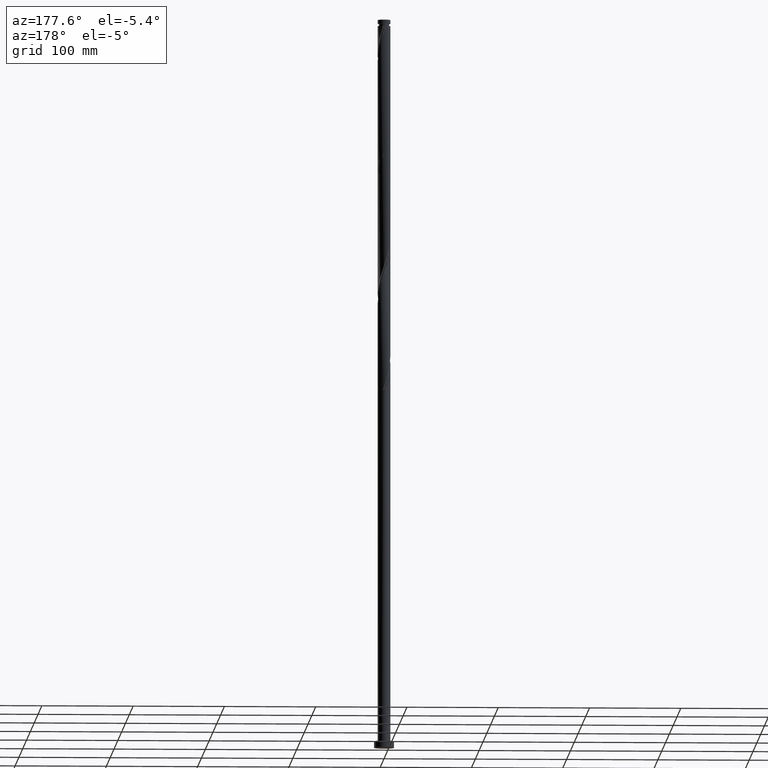
[diagram: clean part render]
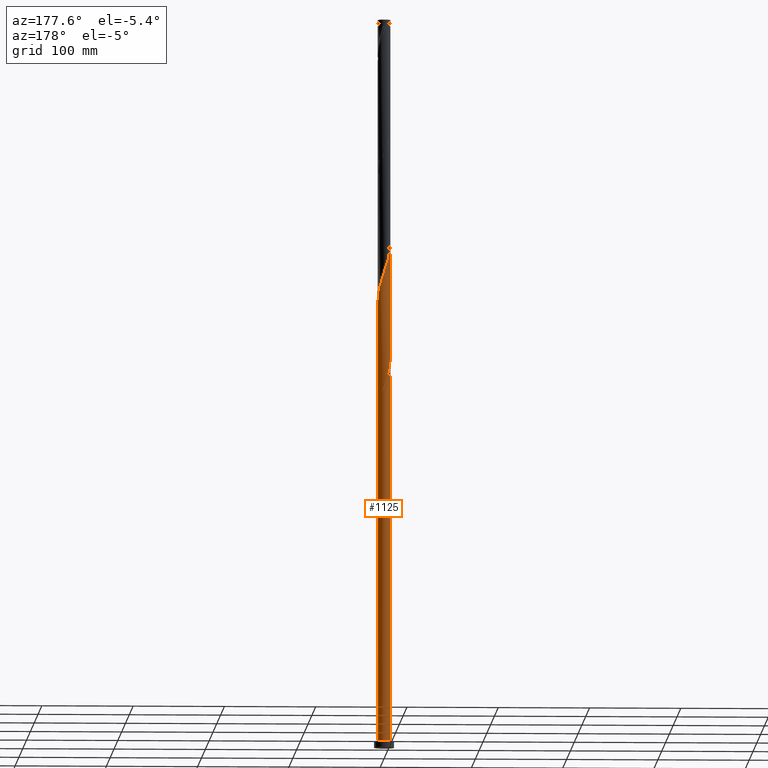
[diagram: same view with one face highlighted and labeled with its STEP entity id]
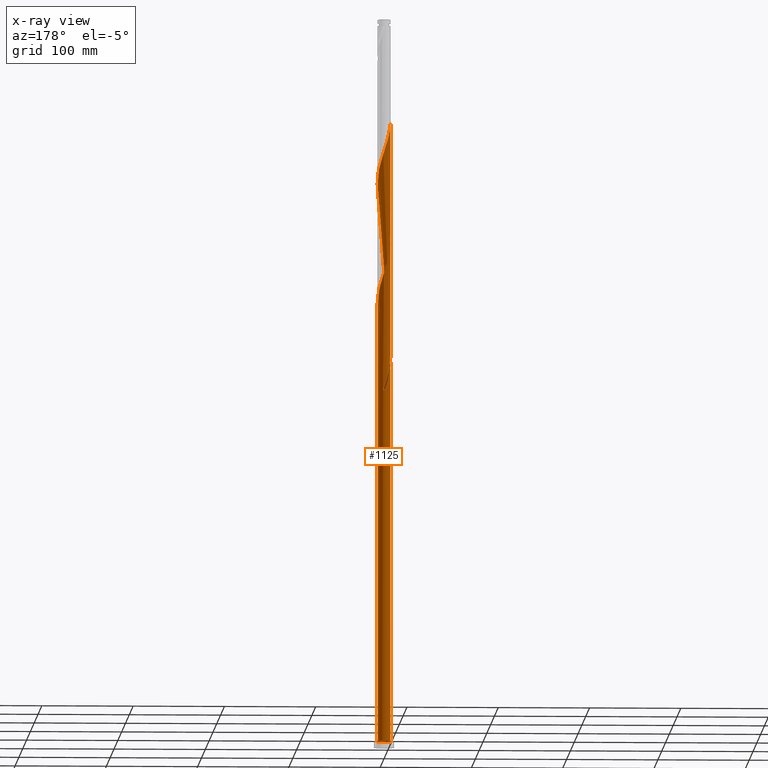
[diagram: x-ray of the same camera — body ghosted, the highlighted face saturated]
A machine part, auxiliary view. The second image highlights one B-rep face of the part: STEP entity #1125.
The next image is the same camera in x-ray: the body ghosted, the highlighted face saturated — about 0% of this face is hidden behind the body in this view.
In plain terms, the highlighted cylindrical surface (bore or boss wall) has radius 7 mm, axis along (-0, -0, -1).
Its self-contained STEP definition (entity closure, byte-faithful):
#10 = ORIENTED_EDGE ( 'NONE', *, *, #1901, .F. ) ;
#19 = CARTESIAN_POINT ( 'NONE',  ( -7.019691716855685826, -0.2457042627693018233, 556.3437618473819839 ) ) ;
#25 = CARTESIAN_POINT ( 'NONE',  ( -6.964393863783810978, 0.9130501051561894510, 552.8349899175576638 ) ) ;
#29 = CARTESIAN_POINT ( 'NONE',  ( 0.2448650581415234284, 6.995715910705735396, 396.6946390403646205 ) ) ;
#47 = CARTESIAN_POINT ( 'NONE',  ( -4.981072876368360269, -4.918222544813072084, 438.7999021982594172 ) ) ;
#49 = CARTESIAN_POINT ( 'NONE',  ( -3.114240358905256745, -6.269091400431627825, 579.1507793912418265 ) ) ;
#53 = CARTESIAN_POINT ( 'NONE',  ( -5.990507344429710557, 3.621301113734375132, 544.0630600929961247 ) ) ;
#68 = ORIENTED_EDGE ( 'NONE', *, *, #2090, .T. ) ;
#71 = CARTESIAN_POINT ( 'NONE',  ( 5.690437779000087737, -4.117688704572491254, 475.6420074614172222 ) ) ;
#73 = CARTESIAN_POINT ( 'NONE',  ( 6.883510678862323928, 1.397756458909656052, 626.5192004438733875 ) ) ;
#78 = CARTESIAN_POINT ( 'NONE',  ( -5.388608415490193870, -4.505479078737756105, 570.3788495666802874 ) ) ;
#82 = CARTESIAN_POINT ( 'NONE',  ( 6.964393863783810978, -0.9130501051561902282, 486.1683232508908645 ) ) ;
#87 = CARTESIAN_POINT ( 'NONE',  ( -5.722650359351619365, -4.031286750482149017, 435.2911302684348129 ) ) ;
#96 = CARTESIAN_POINT ( 'NONE',  ( 6.883510678862323928, 1.397756458909656052, 493.1858671105399594 ) ) ;
#98 = DIRECTION ( 'NONE',  ( 1.000000000000000000, 0.000000000000000000, 0.000000000000000000 ) ) ;
#104 = CARTESIAN_POINT ( 'NONE',  ( -6.721538046192512716, 1.954718980719879262, 424.7648144789611138 ) ) ;
#110 = EDGE_CURVE ( 'NONE', #1826, #957, #1983, .T. ) ;
#115 = CARTESIAN_POINT ( 'NONE',  ( -6.719125500927757955, 2.046898846357005031, 415.9928846543995746 ) ) ;
#141 = CARTESIAN_POINT ( 'NONE',  ( -3.633712082764799955, 6.011038087053209189, 408.9753407947505366 ) ) ;
#154 = CARTESIAN_POINT ( 'NONE',  ( -6.883510678862323928, -1.397756458909656718, 559.8525337772065313 ) ) ;
#193 = CARTESIAN_POINT ( 'NONE',  ( 5.722650359351619365, 4.031286750482150794, 501.9577969351015554 ) ) ;
#217 = CARTESIAN_POINT ( 'NONE',  ( 2.594768635045704652, 6.527144713810042020, 647.5718320228207858 ) ) ;
#226 = CARTESIAN_POINT ( 'NONE',  ( -0.3348164892539748361, -7.016006007904994846, 454.5893758824697670 ) ) ;
#246 = CARTESIAN_POINT ( 'NONE',  ( -0.2448650581415179883, 6.995715910705744278, 523.0104285140488400 ) ) ;
#252 = CARTESIAN_POINT ( 'NONE',  ( -6.308128858367879843, -3.034387962378324755, 565.1156916719434093 ) ) ;
#257 = CARTESIAN_POINT ( 'NONE',  ( -6.841759682355785799, 1.479974475756597574, 684.4139372859787045 ) ) ;
#262 = CARTESIAN_POINT ( 'NONE',  ( 6.992042790319748846, -0.3336729211934429951, 621.2560425491367369 ) ) ;
#269 = CARTESIAN_POINT ( 'NONE',  ( 0.9099315761367687827, 6.940606927837753126, 652.8349899175576638 ) ) ;
#274 = CARTESIAN_POINT ( 'NONE',  ( -6.951601197859004877, -0.8217303608394794789, 424.7648144789611706 ) ) ;
#276 = CIRCLE ( 'NONE', #1416, 7.000000000000000888 ) ;
#277 = CARTESIAN_POINT ( 'NONE',  ( -7.000000000000009770, -2.119877183096811692E-15, 422.2672682430844020 ) ) ;
#279 = CARTESIAN_POINT ( 'NONE',  ( -6.992042790319748846, 0.3336729211934438832, 421.2560425491365663 ) ) ;
#283 =( BOUNDED_CURVE ( )  B_SPLINE_CURVE ( 2, ( #1963, #435, #274, #592, #2137, #1616, #760, #583, #87, #1467, #47, #1446, #954, #2128, #1297, #1276, #2166, #403, #1788, #226, #2155, #1799, #1111, #1811, #940, #605, #1910, #1323, #296, #1081, #1131, #71, #767, #599, #1119, #1334, #1817, #82, #1829, #2161, #960, #96, #1067, #896, #548, #1421, #193, #1430, #1747, #1927, #1240, #709, #369, #538, #1055, #1147, #1336, #1121, #246, #1160, #444, #1819, #2172, #950, #623, #1651, #1841, #284, #1674, #1598, #53, #375, #1455, #571, #1060, #25, #2108, #19, #1939, #154, #1396, #874, #252, #923, #1271, #78, #1977, #774, #1619, #558, #49, #1262, #1949, #388, #823, #1320, #1140, #1863, #2196, #1186, #1697, #646, #320, #685, #1279, #1101, #1092, #1165, #1859, #1353, #483, #1873, #313, #1492, #262, #672, #1215, #73, #1475, #985, #613, #790, #1685, #2199, #1133, #973, #791, #2135, #1174, #217, #1313, #401, #269, #1535, #493, #1191, #507, #1205, #365, #1956, #913, #554, #902, #1580, #1554, #804, #1143, #1692, #2038, #298, #257, #2200, #1842, #1869, #1325 ),
 .UNSPECIFIED., .F., .T. ) 
 B_SPLINE_CURVE_WITH_KNOTS ( ( 3, 2, 2, 2, 2, 2, 2, 2, 2, 2, 2, 2, 2, 2, 2, 2, 2, 2, 2, 2, 2, 2, 2, 2, 2, 2, 2, 2, 2, 2, 2, 2, 2, 2, 2, 2, 2, 2, 2, 2, 2, 2, 2, 2, 2, 2, 2, 2, 2, 2, 2, 2, 2, 2, 2, 2, 2, 2, 2, 2, 2, 2, 2, 2, 2, 2, 2, 2, 2, 2, 2, 2, 2, 2, 2, 2, 2, 3 ),
 ( 0.05452958095159547020, 0.05921052631578949121, 0.06578947368421050879, 0.07236842105263152636, 0.07894736842105265495, 0.08552631578947367252, 0.09210526315789469010, 0.09868421052631581869, 0.1052631578947368363, 0.1118421052631578538, 0.1184210526315789824, 0.1250000000000000000, 0.1315789473684210176, 0.1381578947368421462, 0.1447368421052631637, 0.1513157894736841813, 0.1578947368421053099, 0.1644736842105263275, 0.1710526315789473450, 0.1776315789473684736, 0.1842105263157894912, 0.1907894736842105088, 0.1973684210526315264, 0.2039473684210526550, 0.2105263157894736725, 0.2171052631578946901, 0.2236842105263158187, 0.2302631578947368363, 0.2368421052631578538, 0.2434210526315789824, 0.2500000000000000000, 0.2565789473684210176, 0.2631578947368421462, 0.2697368421052631637, 0.2763157894736841813, 0.2828947368421053099, 0.2894736842105263275, 0.2960526315789473450, 0.3026315789473684736, 0.3092105263157894912, 0.3157894736842105088, 0.3223684210526315264, 0.3289473684210526550, 0.3355263157894736725, 0.3421052631578946901, 0.3486842105263158187, 0.3552631578947368363, 0.3618421052631578538, 0.3684210526315789824, 0.3750000000000000000, 0.3815789473684210176, 0.3881578947368421462, 0.3947368421052631637, 0.4013157894736841813, 0.4078947368421053099, 0.4144736842105263275, 0.4210526315789473450, 0.4276315789473684736, 0.4342105263157894912, 0.4407894736842105088, 0.4473684210526315264, 0.4539473684210526550, 0.4605263157894736725, 0.4671052631578946901, 0.4736842105263158187, 0.4802631578947368363, 0.4868421052631578538, 0.4934210526315789824, 0.5000000000000000000, 0.5065789473684210176, 0.5131578947368420351, 0.5197368421052631637, 0.5263157894736842923, 0.5328947368421053099, 0.5394736842105263275, 0.5460526315789473450, 0.5526315789473683626, 0.5545295809515958796 ),
 .UNSPECIFIED. ) 
 CURVE ( )  GEOMETRIC_REPRESENTATION_ITEM ( )  RATIONAL_B_SPLINE_CURVE ( ( 0.9078162034606338526, 0.9068816855934409560, 0.9090909090909626844, 0.9059859027333896364, 0.9090909090909626844, 0.9059859027333896364, 0.9090909090909626844, 0.9059859027333896364, 0.9090909090909626844, 0.9059859027333896364, 0.9090909090909626844, 0.9059859027333896364, 0.9090909090909626844, 0.9059859027333896364, 0.9090909090909626844, 0.9059859027333896364, 0.9090909090909626844, 0.9059859027333896364, 0.9090909090909626844, 0.9059859027333896364, 0.9090909090909626844, 0.9059859027333896364, 0.9090909090909626844, 0.9059859027333896364, 0.9090909090909626844, 0.9059859027333896364, 0.9090909090909626844, 0.9059859027333896364, 0.9090909090909626844, 0.9059859027333896364, 0.9090909090909626844, 0.9059859027333896364, 0.9090909090909626844, 0.9059859027333896364, 0.9090909090909626844, 0.9059859027333896364, 0.9090909090909626844, 0.9059859027333896364, 0.9090909090909626844, 0.9059859027333896364, 0.9090909090909626844, 0.9059859027333896364, 0.9090909090909626844, 0.9059859027333896364, 0.9090909090909626844, 0.9059859027333896364, 0.9090909090909626844, 0.9059859027333896364, 0.9090909090909626844, 0.9059859027333896364, 0.9090909090909626844, 0.9059859027333896364, 0.9090909090909626844, 0.9059859027333896364, 0.9090909090909626844, 0.9059859027333896364, 0.9090909090909626844, 0.9059859027333896364, 0.9090909090909626844, 0.9059859027333896364, 0.9090909090909626844, 0.9059859027333896364, 0.9090909090909626844, 0.9059859027333896364, 0.9090909090909626844, 0.9059859027333896364, 0.9090909090909626844, 0.9059859027333896364, 0.9090909090909626844, 0.9059859027333896364, 0.9090909090909626844, 0.9059859027333896364, 0.9090909090909626844, 0.9059859027333896364, 0.9090909090909626844, 0.9059859027333896364, 0.9090909090909626844, 0.9059859027333896364, 0.9090909090909626844, 0.9059859027333896364, 0.9090909090909626844, 0.9059859027333896364, 0.9090909090909626844, 0.9059859027333896364, 0.9090909090909626844, 0.9059859027333896364, 0.9090909090909626844, 0.9059859027333896364, 0.9090909090909626844, 0.9059859027333896364, 0.9090909090909626844, 0.9059859027333896364, 0.9090909090909626844, 0.9059859027333896364, 0.9090909090909626844, 0.9059859027333896364, 0.9090909090909626844, 0.9059859027333896364, 0.9090909090909626844, 0.9059859027333896364, 0.9090909090909626844, 0.9059859027333896364, 0.9090909090909626844, 0.9059859027333896364, 0.9090909090909626844, 0.9059859027333896364, 0.9090909090909626844, 0.9059859027333896364, 0.9090909090909626844, 0.9059859027333896364, 0.9090909090909626844, 0.9059859027333896364, 0.9090909090909626844, 0.9059859027333896364, 0.9090909090909626844, 0.9059859027333896364, 0.9090909090909626844, 0.9059859027333896364, 0.9090909090909626844, 0.9059859027333896364, 0.9090909090909626844, 0.9059859027333896364, 0.9090909090909626844, 0.9059859027333896364, 0.9090909090909626844, 0.9059859027333896364, 0.9090909090909626844, 0.9059859027333896364, 0.9090909090909626844, 0.9059859027333896364, 0.9090909090909626844, 0.9059859027333896364, 0.9090909090909626844, 0.9059859027333896364, 0.9090909090909626844, 0.9059859027333896364, 0.9090909090909626844, 0.9059859027333896364, 0.9090909090909626844, 0.9059859027333896364, 0.9090909090909626844, 0.9059859027333896364, 0.9090909090909626844, 0.9059859027333896364, 0.9090909090909626844, 0.9059859027333896364, 0.9090909090909626844, 0.9059859027333896364, 0.9090909090909626844, 0.9059859027333896364, 0.9090909090909626844, 0.9059859027333896364, 0.9090909090909626844, 0.9081951262309111428, 0.9078162034606336306 ) ) 
 REPRESENTATION_ITEM ( '' )  );
#284 = CARTESIAN_POINT ( 'NONE',  ( -4.935078339393903946, 4.998144072401317750, 538.7999021982591330 ) ) ;
#292 = CARTESIAN_POINT ( 'NONE',  ( -7.000000000000010658, 0.1669313397161795720, 421.7609452246443311 ) ) ;
#296 = CARTESIAN_POINT ( 'NONE',  ( 4.490090583436023408, -5.370203585762769016, 470.3788495666805147 ) ) ;
#298 = CARTESIAN_POINT ( 'NONE',  ( -6.719125500927757955, 2.046898846357005031, 682.6595513210663739 ) ) ;
#306 = ORIENTED_EDGE ( 'NONE', *, *, #1062, .F. ) ;
#313 = CARTESIAN_POINT ( 'NONE',  ( 6.841759682355785799, -1.479974475756600460, 617.7472706193118483 ) ) ;
#317 = CARTESIAN_POINT ( 'NONE',  ( -1.485046663019558455, 6.865207847770501637, 401.9577969351014985 ) ) ;
#320 = CARTESIAN_POINT ( 'NONE',  ( 3.544945141351496076, -6.036005628294971004, 600.2034109701892248 ) ) ;
#328 = DIRECTION ( 'NONE',  ( -1.000000000000000000, 0.000000000000000000, 0.000000000000000000 ) ) ;
#329 = CARTESIAN_POINT ( 'NONE',  ( -5.990507344429710557, 3.621301113734375132, 410.7297267596628103 ) ) ;
#343 = ORIENTED_EDGE ( 'NONE', *, *, #1316, .F. ) ;
#365 = CARTESIAN_POINT ( 'NONE',  ( -2.503102836793194896, 6.537161171979624541, 663.3613057070315335 ) ) ;
#369 = CARTESIAN_POINT ( 'NONE',  ( 3.114240358905257189, 6.269091400431627825, 512.4841127245753114 ) ) ;
#373 = EDGE_CURVE ( 'NONE', #439, #515, #1117, .T. ) ;
#375 = CARTESIAN_POINT ( 'NONE',  ( -6.290576909859333377, 3.124913522896259011, 545.8174460579083416 ) ) ;
#388 = CARTESIAN_POINT ( 'NONE',  ( -1.485046663019564450, -6.865207847770506966, 584.4139372859787045 ) ) ;
#401 = CARTESIAN_POINT ( 'NONE',  ( 1.485046663019565116, 6.865207847770508742, 651.0806039526453333 ) ) ;
#403 = CARTESIAN_POINT ( 'NONE',  ( -1.485046663019564450, -6.865207847770506966, 451.0806039526452196 ) ) ;
#411 = FACE_OUTER_BOUND ( 'NONE', #609, .T. ) ;
#435 = CARTESIAN_POINT ( 'NONE',  ( -7.000000000000010658, -0.4122904922740331379, 423.5177953572697334 ) ) ;
#439 = VERTEX_POINT ( 'NONE', #1730 ) ;
#444 = CARTESIAN_POINT ( 'NONE',  ( -1.392982411949277299, 6.860000000000007425, 526.5192004438736149 ) ) ;
#473 = CARTESIAN_POINT ( 'NONE',  ( -4.573537337246520451, 5.330966010888385398, 412.4841127245751409 ) ) ;
#483 = CARTESIAN_POINT ( 'NONE',  ( 6.504851205393546998, -2.585906184626632243, 614.2384986894876420 ) ) ;
#493 = CARTESIAN_POINT ( 'NONE',  ( -0.2448650581415179883, 6.995715910705744278, 656.3437618473823250 ) ) ;
#499 = CARTESIAN_POINT ( 'NONE',  ( -4.045102827478141094, 5.742263099124218506, 401.9577969351013849 ) ) ;
#500 = VECTOR ( 'NONE', #744, 1000.000000000000000 ) ;
#507 = CARTESIAN_POINT ( 'NONE',  ( -1.392982411949277299, 6.860000000000007425, 659.8525337772067587 ) ) ;
#512 = CARTESIAN_POINT ( 'NONE',  ( -6.308128858367871850, 3.034387962378322978, 421.2560425491365663 ) ) ;
#515 = VERTEX_POINT ( 'NONE', #1765 ) ;
#519 = CARTESIAN_POINT ( 'NONE',  ( -7.000000000000000888, 0.000000000000000000, 800.0000000000000000 ) ) ;
#524 = CARTESIAN_POINT ( 'NONE',  ( 0.8245466055370179737, 6.975425813506483941, 394.9402530754524037 ) ) ;
#538 = CARTESIAN_POINT ( 'NONE',  ( 2.594768635045704652, 6.527144713810042020, 514.2384986894874146 ) ) ;
#548 = CARTESIAN_POINT ( 'NONE',  ( 6.308128858367882508, 3.034387962378322534, 498.4490250052770079 ) ) ;
#554 = CARTESIAN_POINT ( 'NONE',  ( -4.045102827478141094, 5.742263099124218506, 668.6244636017682978 ) ) ;
#558 = CARTESIAN_POINT ( 'NONE',  ( -3.633712082764805285, -6.011038087053212742, 577.3963934263294959 ) ) ;
#571 = CARTESIAN_POINT ( 'NONE',  ( -6.719125500927757955, 2.046898846357005031, 549.3262179877328890 ) ) ;
#583 = CARTESIAN_POINT ( 'NONE',  ( -6.056692303213043083, -3.557094422226545039, 433.5367443035224255 ) ) ;
#592 = CARTESIAN_POINT ( 'NONE',  ( -6.883510678862323928, -1.397756458909656718, 426.5192004438732738 ) ) ;
#599 = CARTESIAN_POINT ( 'NONE',  ( 6.290576909859333377, -3.124913522896261231, 479.1507793912417128 ) ) ;
#605 = CARTESIAN_POINT ( 'NONE',  ( 3.044787455224846617, -6.329748157465723502, 465.1156916719436367 ) ) ;
#609 = EDGE_LOOP ( 'NONE', ( #10, #343, #1814, #1085, #1300, #306, #1333, #68, #1867 ) ) ;
#613 = CARTESIAN_POINT ( 'NONE',  ( 6.308128858367882508, 3.034387962378322534, 631.7823583386102655 ) ) ;
#623 = CARTESIAN_POINT ( 'NONE',  ( -3.544945141351496076, 6.036005628294971004, 533.5367443035225961 ) ) ;
#630 = CARTESIAN_POINT ( 'NONE',  ( -6.559565413522707722, 2.511681502530102250, 423.0104285140488400 ) ) ;
#646 = CARTESIAN_POINT ( 'NONE',  ( 3.044787455224846617, -6.329748157465723502, 598.4490250052770079 ) ) ;
#667 = CARTESIAN_POINT ( 'NONE',  ( -0.3348164892539708948, 7.016006007904984187, 398.4490250052768374 ) ) ;
#672 = CARTESIAN_POINT ( 'NONE',  ( 7.019691716855685826, 0.2457042627692980485, 623.0104285140488400 ) ) ;
#685 = CARTESIAN_POINT ( 'NONE',  ( 4.045102827478140206, -5.742263099124220282, 601.9577969351014417 ) ) ;
#709 = CARTESIAN_POINT ( 'NONE',  ( 3.633712082764808393, 6.011038087053211854, 510.7297267596628672 ) ) ;
#725 = CYLINDRICAL_SURFACE ( 'NONE', #1414, 7.000000000000000888 ) ;
#735 = CARTESIAN_POINT ( 'NONE',  ( 1.392982411949279964, 6.860000000000000320, 393.1858671105400163 ) ) ;
#744 = DIRECTION ( 'NONE',  ( -0.000000000000000000, -0.000000000000000000, -1.000000000000000000 ) ) ;
#760 = CARTESIAN_POINT ( 'NONE',  ( -6.308128858367879843, -3.034387962378324755, 431.7823583386102655 ) ) ;
#767 = CARTESIAN_POINT ( 'NONE',  ( 5.990507344429709669, -3.621301113734377797, 477.3963934263295528 ) ) ;
#774 = CARTESIAN_POINT ( 'NONE',  ( -4.573537337246526668, -5.330966010888391615, 573.8876214965049485 ) ) ;
#780 = CARTESIAN_POINT ( 'NONE',  ( 0.000000000000000000, 0.000000000000000000, 7.000000000000000000 ) ) ;
#790 = CARTESIAN_POINT ( 'NONE',  ( 6.056692303213043083, 3.557094422226544594, 633.5367443035222550 ) ) ;
#791 = CARTESIAN_POINT ( 'NONE',  ( 4.103624710005671083, 5.671002048970800402, 642.3086741280841352 ) ) ;
#797 = CARTESIAN_POINT ( 'NONE',  ( -6.056692303213035089, 3.557094422226542374, 419.5016565842242358 ) ) ;
#804 = CARTESIAN_POINT ( 'NONE',  ( -5.690437779000087737, 4.117688704572489478, 675.6420074614172790 ) ) ;
#809 = CARTESIAN_POINT ( 'NONE',  ( -3.544945141351496076, 6.036005628294971004, 400.2034109701891111 ) ) ;
#823 = CARTESIAN_POINT ( 'NONE',  ( -0.9099315761367683386, -6.940606927837753126, 586.1683232508910351 ) ) ;
#835 = CARTESIAN_POINT ( 'NONE',  ( -0.9099315761367652300, 6.940606927837743356, 400.2034109701891680 ) ) ;
#867 = LINE ( 'NONE', #519, #1376 ) ;
#874 = CARTESIAN_POINT ( 'NONE',  ( -6.559565413522717492, -2.511681502530103582, 563.3613057070310788 ) ) ;
#896 = CARTESIAN_POINT ( 'NONE',  ( 6.559565413522717492, 2.511681502530100030, 496.6946390403646774 ) ) ;
#902 = CARTESIAN_POINT ( 'NONE',  ( -4.490090583436024296, 5.370203585762769016, 670.3788495666806284 ) ) ;
#913 = CARTESIAN_POINT ( 'NONE',  ( -3.544945141351496076, 6.036005628294971004, 666.8700776368559673 ) ) ;
#923 = CARTESIAN_POINT ( 'NONE',  ( -6.056692303213043083, -3.557094422226545039, 566.8700776368556262 ) ) ;
#940 = CARTESIAN_POINT ( 'NONE',  ( 2.503102836793194452, -6.537161171979625429, 463.3613057070312493 ) ) ;
#950 = CARTESIAN_POINT ( 'NONE',  ( -3.044787455224847506, 6.329748157465721725, 531.7823583386101518 ) ) ;
#954 = CARTESIAN_POINT ( 'NONE',  ( -4.103624710005667531, -5.671002048970803067, 442.3086741280839078 ) ) ;
#957 = VERTEX_POINT ( 'NONE', #277 ) ;
#960 = CARTESIAN_POINT ( 'NONE',  ( 6.951601197859004877, 0.8217303608394771475, 491.4314811456277994 ) ) ;
#973 = CARTESIAN_POINT ( 'NONE',  ( 4.573537337246526668, 5.330966010888388951, 640.5542881631714636 ) ) ;
#985 = CARTESIAN_POINT ( 'NONE',  ( 6.559565413522717492, 2.511681502530100030, 630.0279723736979349 ) ) ;
#999 = CIRCLE ( 'NONE', #1987, 7.000000000000000888 ) ;
#1026 = DIRECTION ( 'NONE',  ( 0.000000000000000000, -0.000000000000000000, -1.000000000000000000 ) ) ;
#1034 = DIRECTION ( 'NONE',  ( -0.000000000000000000, -0.000000000000000000, -1.000000000000000000 ) ) ;
#1055 = CARTESIAN_POINT ( 'NONE',  ( 2.039907649032638659, 6.696176280790275825, 515.9928846543998588 ) ) ;
#1060 = CARTESIAN_POINT ( 'NONE',  ( -6.841759682355785799, 1.479974475756597574, 551.0806039526453333 ) ) ;
#1062 = EDGE_CURVE ( 'NONE', #957, #1066, #867, .T. ) ;
#1066 = VERTEX_POINT ( 'NONE', #1847 ) ;
#1067 = CARTESIAN_POINT ( 'NONE',  ( 6.721538046192520710, 1.954718980719881483, 494.9402530754523468 ) ) ;
#1081 = CARTESIAN_POINT ( 'NONE',  ( 4.935078339393903946, -4.998144072401318638, 472.1332355315926179 ) ) ;
#1085 = ORIENTED_EDGE ( 'NONE', *, *, #1783, .T. ) ;
#1092 = CARTESIAN_POINT ( 'NONE',  ( 5.312758059196996285, -4.557916388486905390, 607.2209548298384334 ) ) ;
#1101 = CARTESIAN_POINT ( 'NONE',  ( 4.935078339393903946, -4.998144072401318638, 605.4665688649261028 ) ) ;
#1106 = AXIS2_PLACEMENT_3D ( 'NONE', #1595, #1777, #1980 ) ;
#1111 = CARTESIAN_POINT ( 'NONE',  ( 1.392982411949278410, -6.860000000000007425, 459.8525337772068156 ) ) ;
#1117 =( BOUNDED_CURVE ( )  B_SPLINE_CURVE ( 2, ( #1889, #1670, #1513, #2066, #104, #630, #512, #797, #2192, #2206, #1344, #473, #2220, #141, #1356, #2041, #1183, #317, #835, #667, #29, #524, #735 ),
 .UNSPECIFIED., .F., .T. ) 
 B_SPLINE_CURVE_WITH_KNOTS ( ( 3, 2, 2, 2, 2, 2, 2, 2, 2, 2, 2, 3 ),
 ( 0.9295295809515955465, 0.9342105263157894912, 0.9407894736842105088, 0.9473684210526315264, 0.9539473684210526550, 0.9605263157894736725, 0.9671052631578946901, 0.9736842105263158187, 0.9802631578947368363, 0.9868421052631578538, 0.9934210526315789824, 1.000000000000000000 ),
 .UNSPECIFIED. ) 
 CURVE ( )  GEOMETRIC_REPRESENTATION_ITEM ( )  RATIONAL_B_SPLINE_CURVE ( ( 0.9078162034606287456, 0.9068816855934358490, 0.9090909090909575774, 0.9059859027333845294, 0.9090909090909575774, 0.9059859027333845294, 0.9090909090909575774, 0.9059859027333845294, 0.9090909090909575774, 0.9059859027333845294, 0.9090909090909575774, 0.9059859027333845294, 0.9090909090909575774, 0.9059859027333845294, 0.9090909090909575774, 0.9059859027333845294, 0.9090909090909575774, 0.9059859027333845294, 0.9090909090909575774, 0.9059859027333845294, 0.9090909090909575774, 0.9059859027333845294, 0.9090909090909575774 ) ) 
 REPRESENTATION_ITEM ( '' )  );
#1119 = CARTESIAN_POINT ( 'NONE',  ( 6.504851205393546998, -2.585906184626632243, 480.9051653561541571 ) ) ;
#1121 = CARTESIAN_POINT ( 'NONE',  ( 0.3348164892539727266, 7.016006007904994846, 521.2560425491366232 ) ) ;
#1125 = ADVANCED_FACE ( 'NONE', ( #411 ), #725, .T. ) ;
#1128 = VERTEX_POINT ( 'NONE', #1932 ) ;
#1131 = CARTESIAN_POINT ( 'NONE',  ( 5.312758059196996285, -4.557916388486905390, 473.8876214965051759 ) ) ;
#1133 = CARTESIAN_POINT ( 'NONE',  ( 4.981072876368362046, 4.918222544813072084, 638.7999021982595877 ) ) ;
#1140 = CARTESIAN_POINT ( 'NONE',  ( 0.2448650581415218463, -6.995715910705744278, 589.6770951807156962 ) ) ;
#1143 = CARTESIAN_POINT ( 'NONE',  ( -5.990507344429710557, 3.621301113734375132, 677.3963934263294959 ) ) ;
#1147 = CARTESIAN_POINT ( 'NONE',  ( 1.485046663019565116, 6.865207847770508742, 517.7472706193120757 ) ) ;
#1158 = VERTEX_POINT ( 'NONE', #1256 ) ;
#1160 = CARTESIAN_POINT ( 'NONE',  ( -0.8245466055370147540, 6.975425813506491046, 524.7648144789610569 ) ) ;
#1165 = CARTESIAN_POINT ( 'NONE',  ( 5.690437779000087737, -4.117688704572491254, 608.9753407947505366 ) ) ;
#1169 = CARTESIAN_POINT ( 'NONE',  ( -4.935078339393903946, 4.998144072401317750, 405.4665688649258186 ) ) ;
#1174 = CARTESIAN_POINT ( 'NONE',  ( 3.114240358905257189, 6.269091400431627825, 645.8174460579084553 ) ) ;
#1183 = CARTESIAN_POINT ( 'NONE',  ( -2.039907649032629333, 6.696176280790268720, 403.7121829000136586 ) ) ;
#1186 = CARTESIAN_POINT ( 'NONE',  ( 1.961418218361537402, -6.744574186493523804, 594.9402530754523468 ) ) ;
#1191 = CARTESIAN_POINT ( 'NONE',  ( -0.8245466055370147540, 6.975425813506491046, 658.0981478122943145 ) ) ;
#1205 = CARTESIAN_POINT ( 'NONE',  ( -1.961418218361539623, 6.744574186493522028, 661.6069197421190893 ) ) ;
#1210 = CARTESIAN_POINT ( 'NONE',  ( -6.290576909859333377, 3.124913522896259011, 412.4841127245750840 ) ) ;
#1215 = CARTESIAN_POINT ( 'NONE',  ( 6.951601197859004877, 0.8217303608394771475, 624.7648144789612843 ) ) ;
#1240 = CARTESIAN_POINT ( 'NONE',  ( 4.103624710005671083, 5.671002048970800402, 508.9753407947505934 ) ) ;
#1245 = DIRECTION ( 'NONE',  ( -1.000000000000000000, 0.000000000000000000, 0.000000000000000000 ) ) ;
#1256 = CARTESIAN_POINT ( 'NONE',  ( -7.000000000000009770, 6.867207776229107436E-16, 688.9339349097513150 ) ) ;
#1261 = CARTESIAN_POINT ( 'NONE',  ( -7.000000000000000888, 0.000000000000000000, 800.0000000000000000 ) ) ;
#1262 = CARTESIAN_POINT ( 'NONE',  ( -2.594768635045703764, -6.527144713810042020, 580.9051653561541571 ) ) ;
#1271 = CARTESIAN_POINT ( 'NONE',  ( -5.722650359351619365, -4.031286750482149017, 568.6244636017678431 ) ) ;
#1276 = CARTESIAN_POINT ( 'NONE',  ( -2.594768635045703764, -6.527144713810042020, 447.5718320228207290 ) ) ;
#1279 = CARTESIAN_POINT ( 'NONE',  ( 4.490090583436023408, -5.370203585762769016, 603.7121829000138860 ) ) ;
#1297 = CARTESIAN_POINT ( 'NONE',  ( -3.114240358905256745, -6.269091400431627825, 445.8174460579085689 ) ) ;
#1300 = ORIENTED_EDGE ( 'NONE', *, *, #1646, .T. ) ;
#1309 = CARTESIAN_POINT ( 'NONE',  ( -3.044787455224847506, 6.329748157465721725, 398.4490250052767237 ) ) ;
#1313 = CARTESIAN_POINT ( 'NONE',  ( 2.039907649032638659, 6.696176280790275825, 649.3262179877330027 ) ) ;
#1316 = EDGE_CURVE ( 'NONE', #957, #1158, #283, .T. ) ;
#1320 = CARTESIAN_POINT ( 'NONE',  ( -0.3348164892539748361, -7.016006007904994846, 587.9227092158033656 ) ) ;
#1323 = CARTESIAN_POINT ( 'NONE',  ( 4.045102827478140206, -5.742263099124220282, 468.6244636017681273 ) ) ;
#1325 = CARTESIAN_POINT ( 'NONE',  ( -7.000000000000009770, 6.867207776229107436E-16, 688.9339349097512013 ) ) ;
#1333 = ORIENTED_EDGE ( 'NONE', *, *, #110, .F. ) ;
#1334 = CARTESIAN_POINT ( 'NONE',  ( 6.719125500927756178, -2.046898846357009472, 482.6595513210663171 ) ) ;
#1336 = CARTESIAN_POINT ( 'NONE',  ( 0.9099315761367687827, 6.940606927837753126, 519.5016565842242926 ) ) ;
#1344 = CARTESIAN_POINT ( 'NONE',  ( -4.981072876368353164, 4.918222544813068531, 414.2384986894874146 ) ) ;
#1353 = CARTESIAN_POINT ( 'NONE',  ( 6.290576909859333377, -3.124913522896261231, 612.4841127245750840 ) ) ;
#1356 = CARTESIAN_POINT ( 'NONE',  ( -3.114240358905251416, 6.269091400431621608, 407.2209548298382060 ) ) ;
#1376 = VECTOR ( 'NONE', #1034, 1000.000000000000000 ) ;
#1396 = CARTESIAN_POINT ( 'NONE',  ( -6.721538046192520710, -1.954718980719880150, 561.6069197421189756 ) ) ;
#1414 = AXIS2_PLACEMENT_3D ( 'NONE', #2107, #2097, #1245 ) ;
#1416 = AXIS2_PLACEMENT_3D ( 'NONE', #1912, #1026, #328 ) ;
#1421 = CARTESIAN_POINT ( 'NONE',  ( 6.056692303213043083, 3.557094422226544594, 500.2034109701891680 ) ) ;
#1430 = CARTESIAN_POINT ( 'NONE',  ( 5.388608415490194758, 4.505479078737750775, 503.7121829000137154 ) ) ;
#1446 = CARTESIAN_POINT ( 'NONE',  ( -4.573537337246526668, -5.330966010888391615, 440.5542881631715204 ) ) ;
#1455 = CARTESIAN_POINT ( 'NONE',  ( -6.504851205393546998, 2.585906184626632243, 547.5718320228208995 ) ) ;
#1461 = CARTESIAN_POINT ( 'NONE',  ( -1.961418218361539623, 6.744574186493522028, 394.9402530754522900 ) ) ;
#1467 = CARTESIAN_POINT ( 'NONE',  ( -5.388608415490193870, -4.505479078737756105, 437.0455162333469161 ) ) ;
#1475 = CARTESIAN_POINT ( 'NONE',  ( 6.721538046192520710, 1.954718980719881483, 628.2735864087856044 ) ) ;
#1481 = CARTESIAN_POINT ( 'NONE',  ( -1.392982411949277077, 6.860000000000007425, 393.1858671105400163 ) ) ;
#1485 = CIRCLE ( 'NONE', #1106, 7.000000000000000888 ) ;
#1492 = CARTESIAN_POINT ( 'NONE',  ( 6.964393863783810978, -0.9130501051561902282, 619.5016565842241789 ) ) ;
#1513 = CARTESIAN_POINT ( 'NONE',  ( -6.951601197858996883, 0.8217303608394801451, 428.2735864087856612 ) ) ;
#1535 = CARTESIAN_POINT ( 'NONE',  ( 0.3348164892539727266, 7.016006007904994846, 654.5893758824699944 ) ) ;
#1554 = CARTESIAN_POINT ( 'NONE',  ( -5.312758059196996285, 4.557916388486903614, 673.8876214965049485 ) ) ;
#1580 = CARTESIAN_POINT ( 'NONE',  ( -4.935078339393903946, 4.998144072401317750, 672.1332355315925042 ) ) ;
#1595 = CARTESIAN_POINT ( 'NONE',  ( 0.000000000000000000, 0.000000000000000000, 7.000000000000000000 ) ) ;
#1598 = CARTESIAN_POINT ( 'NONE',  ( -5.690437779000087737, 4.117688704572489478, 542.3086741280837941 ) ) ;
#1616 = CARTESIAN_POINT ( 'NONE',  ( -6.559565413522717492, -2.511681502530103582, 430.0279723736977644 ) ) ;
#1619 = CARTESIAN_POINT ( 'NONE',  ( -4.103624710005667531, -5.671002048970803067, 575.6420074614173927 ) ) ;
#1646 = EDGE_CURVE ( 'NONE', #1128, #1066, #999, .T. ) ;
#1651 = CARTESIAN_POINT ( 'NONE',  ( -4.045102827478141094, 5.742263099124218506, 535.2911302684346992 ) ) ;
#1670 = CARTESIAN_POINT ( 'NONE',  ( -7.000000000000001776, 0.4122904922740411870, 429.5206055304769848 ) ) ;
#1674 = CARTESIAN_POINT ( 'NONE',  ( -5.312758059196996285, 4.557916388486903614, 540.5542881631716909 ) ) ;
#1685 = CARTESIAN_POINT ( 'NONE',  ( 5.722650359351619365, 4.031286750482150794, 635.2911302684349266 ) ) ;
#1692 = CARTESIAN_POINT ( 'NONE',  ( -6.290576909859333377, 3.124913522896259011, 679.1507793912414854 ) ) ;
#1694 = CARTESIAN_POINT ( 'NONE',  ( -4.490090583436024296, 5.370203585762769016, 403.7121829000138291 ) ) ;
#1697 = CARTESIAN_POINT ( 'NONE',  ( 2.503102836793194452, -6.537161171979625429, 596.6946390403645637 ) ) ;
#1718 = CARTESIAN_POINT ( 'NONE',  ( -6.504851205393546998, 2.585906184626632243, 414.2384986894874146 ) ) ;
#1730 = CARTESIAN_POINT ( 'NONE',  ( -6.999999999999999112, 3.791892989483050402E-15, 430.7711326446622593 ) ) ;
#1747 = CARTESIAN_POINT ( 'NONE',  ( 4.981072876368362046, 4.918222544813072084, 505.4665688649260460 ) ) ;
#1765 = CARTESIAN_POINT ( 'NONE',  ( 1.392982411949279964, 6.860000000000000320, 393.1858671105400163 ) ) ;
#1766 = LINE ( 'NONE', #1261, #500 ) ;
#1777 = DIRECTION ( 'NONE',  ( 0.000000000000000000, 0.000000000000000000, 1.000000000000000000 ) ) ;
#1782 = CARTESIAN_POINT ( 'NONE',  ( -1.392982411949277077, 6.860000000000007425, 393.1858671105400163 ) ) ;
#1783 = EDGE_CURVE ( 'NONE', #1066, #1128, #1485, .T. ) ;
#1788 = CARTESIAN_POINT ( 'NONE',  ( -0.9099315761367683386, -6.940606927837753126, 452.8349899175576638 ) ) ;
#1799 = CARTESIAN_POINT ( 'NONE',  ( 0.8245466055370156422, -6.975425813506491046, 458.0981478122944281 ) ) ;
#1811 = CARTESIAN_POINT ( 'NONE',  ( 1.961418218361537402, -6.744574186493523804, 461.6069197421190324 ) ) ;
#1814 = ORIENTED_EDGE ( 'NONE', *, *, #1062, .T. ) ;
#1817 = CARTESIAN_POINT ( 'NONE',  ( 6.841759682355785799, -1.479974475756600460, 484.4139372859787613 ) ) ;
#1819 = CARTESIAN_POINT ( 'NONE',  ( -1.961418218361539623, 6.744574186493522028, 528.2735864087856044 ) ) ;
#1826 = VERTEX_POINT ( 'NONE', #1782 ) ;
#1829 = CARTESIAN_POINT ( 'NONE',  ( 6.992042790319748846, -0.3336729211934429951, 487.9227092158032519 ) ) ;
#1841 = CARTESIAN_POINT ( 'NONE',  ( -4.490090583436024296, 5.370203585762769016, 537.0455162333470298 ) ) ;
#1842 = CARTESIAN_POINT ( 'NONE',  ( -6.992042790319748846, 0.3336729211934438832, 687.9227092158032519 ) ) ;
#1847 = CARTESIAN_POINT ( 'NONE',  ( -7.000000000000000888, 0.000000000000000000, 7.000000000000000000 ) ) ;
#1850 = CARTESIAN_POINT ( 'NONE',  ( -6.841759682355785799, 1.479974475756597574, 417.7472706193121326 ) ) ;
#1859 = CARTESIAN_POINT ( 'NONE',  ( 5.990507344429709669, -3.621301113734377797, 610.7297267596630945 ) ) ;
#1863 = CARTESIAN_POINT ( 'NONE',  ( 0.8245466055370156422, -6.975425813506491046, 591.4314811456279131 ) ) ;
#1864 = CARTESIAN_POINT ( 'NONE',  ( -5.690437779000087737, 4.117688704572489478, 408.9753407947504797 ) ) ;
#1867 = ORIENTED_EDGE ( 'NONE', *, *, #373, .F. ) ;
#1869 = CARTESIAN_POINT ( 'NONE',  ( -7.000000000000012434, 0.1669313397161366341, 688.4276118913111304 ) ) ;
#1873 = CARTESIAN_POINT ( 'NONE',  ( 6.719125500927756178, -2.046898846357009472, 615.9928846543995178 ) ) ;
#1876 = CARTESIAN_POINT ( 'NONE',  ( -5.312758059196996285, 4.557916388486903614, 407.2209548298382629 ) ) ;
#1889 = CARTESIAN_POINT ( 'NONE',  ( -6.999999999999999112, 3.791892989483050402E-15, 430.7711326446622593 ) ) ;
#1901 = EDGE_CURVE ( 'NONE', #1158, #439, #1766, .T. ) ;
#1910 = CARTESIAN_POINT ( 'NONE',  ( 3.544945141351496076, -6.036005628294971004, 466.8700776368559673 ) ) ;
#1912 = CARTESIAN_POINT ( 'NONE',  ( 0.000000000000000000, 0.000000000000000000, 393.1858671105400731 ) ) ;
#1927 = CARTESIAN_POINT ( 'NONE',  ( 4.573537337246526668, 5.330966010888388951, 507.2209548298383197 ) ) ;
#1932 = CARTESIAN_POINT ( 'NONE',  ( 7.000000000000000888, 0.000000000000000000, 7.000000000000000000 ) ) ;
#1939 = CARTESIAN_POINT ( 'NONE',  ( -6.951601197859004877, -0.8217303608394794789, 558.0981478122944281 ) ) ;
#1949 = CARTESIAN_POINT ( 'NONE',  ( -2.039907649032634662, -6.696176280790276714, 582.6595513210664876 ) ) ;
#1956 = CARTESIAN_POINT ( 'NONE',  ( -3.044787455224847506, 6.329748157465721725, 665.1156916719435230 ) ) ;
#1963 = CARTESIAN_POINT ( 'NONE',  ( -7.000000000000009770, -2.119877183096811297E-15, 422.2672682430844020 ) ) ;
#1977 = CARTESIAN_POINT ( 'NONE',  ( -4.981072876368360269, -4.918222544813072084, 572.1332355315926179 ) ) ;
#1980 = DIRECTION ( 'NONE',  ( 1.000000000000000000, 0.000000000000000000, 0.000000000000000000 ) ) ;
#1983 =( BOUNDED_CURVE ( )  B_SPLINE_CURVE ( 2, ( #1481, #1461, #2141, #1309, #809, #499, #1694, #1169, #1876, #1864, #329, #1210, #1718, #115, #1850, #2180, #279, #292, #2017 ),
 .UNSPECIFIED., .F., .T. ) 
 B_SPLINE_CURVE_WITH_KNOTS ( ( 3, 2, 2, 2, 2, 2, 2, 2, 2, 3 ),
 ( 0.000000000000000000, 0.006578947368421017572, 0.01315789473684214617, 0.01973684210526316374, 0.02631578947368418131, 0.03289473684210530990, 0.03947368421052632748, 0.04605263157894734505, 0.05263157894736847364, 0.05452958095159546326 ),
 .UNSPECIFIED. ) 
 CURVE ( )  GEOMETRIC_REPRESENTATION_ITEM ( )  RATIONAL_B_SPLINE_CURVE ( ( 0.9090909090909626844, 0.9059859027333896364, 0.9090909090909626844, 0.9059859027333896364, 0.9090909090909626844, 0.9059859027333896364, 0.9090909090909626844, 0.9059859027333896364, 0.9090909090909626844, 0.9059859027333896364, 0.9090909090909626844, 0.9059859027333896364, 0.9090909090909626844, 0.9059859027333896364, 0.9090909090909626844, 0.9059859027333896364, 0.9090909090909626844, 0.9081951262309113648, 0.9078162034606338526 ) ) 
 REPRESENTATION_ITEM ( '' )  );
#1987 = AXIS2_PLACEMENT_3D ( 'NONE', #780, #2163, #98 ) ;
#2017 = CARTESIAN_POINT ( 'NONE',  ( -7.000000000000009770, -2.119877183096811297E-15, 422.2672682430844020 ) ) ;
#2038 = CARTESIAN_POINT ( 'NONE',  ( -6.504851205393546998, 2.585906184626632243, 680.9051653561540434 ) ) ;
#2041 = CARTESIAN_POINT ( 'NONE',  ( -2.594768635045700211, 6.527144713810036691, 405.4665688649259323 ) ) ;
#2066 = CARTESIAN_POINT ( 'NONE',  ( -6.883510678862316823, 1.397756458909656496, 426.5192004438733875 ) ) ;
#2090 = EDGE_CURVE ( 'NONE', #1826, #515, #276, .T. ) ;
#2097 = DIRECTION ( 'NONE',  ( -0.000000000000000000, -0.000000000000000000, -1.000000000000000000 ) ) ;
#2107 = CARTESIAN_POINT ( 'NONE',  ( 0.000000000000000000, 0.000000000000000000, 800.0000000000000000 ) ) ;
#2108 = CARTESIAN_POINT ( 'NONE',  ( -6.992042790319748846, 0.3336729211934438832, 554.5893758824701081 ) ) ;
#2128 = CARTESIAN_POINT ( 'NONE',  ( -3.633712082764805285, -6.011038087053212742, 444.0630600929960679 ) ) ;
#2135 = CARTESIAN_POINT ( 'NONE',  ( 3.633712082764808393, 6.011038087053211854, 644.0630600929962384 ) ) ;
#2137 = CARTESIAN_POINT ( 'NONE',  ( -6.721538046192520710, -1.954718980719880150, 428.2735864087857180 ) ) ;
#2141 = CARTESIAN_POINT ( 'NONE',  ( -2.503102836793194896, 6.537161171979624541, 396.6946390403645637 ) ) ;
#2155 = CARTESIAN_POINT ( 'NONE',  ( 0.2448650581415218463, -6.995715910705744278, 456.3437618473821544 ) ) ;
#2161 = CARTESIAN_POINT ( 'NONE',  ( 7.019691716855685826, 0.2457042627692980485, 489.6770951807155257 ) ) ;
#2163 = DIRECTION ( 'NONE',  ( 0.000000000000000000, 0.000000000000000000, 1.000000000000000000 ) ) ;
#2166 = CARTESIAN_POINT ( 'NONE',  ( -2.039907649032634662, -6.696176280790276714, 449.3262179877331164 ) ) ;
#2172 = CARTESIAN_POINT ( 'NONE',  ( -2.503102836793194896, 6.537161171979624541, 530.0279723736981623 ) ) ;
#2180 = CARTESIAN_POINT ( 'NONE',  ( -6.964393863783810978, 0.9130501051561894510, 419.5016565842241789 ) ) ;
#2192 = CARTESIAN_POINT ( 'NONE',  ( -5.722650359351611371, 4.031286750482146353, 417.7472706193120757 ) ) ;
#2196 = CARTESIAN_POINT ( 'NONE',  ( 1.392982411949278410, -6.860000000000007425, 593.1858671105400163 ) ) ;
#2199 = CARTESIAN_POINT ( 'NONE',  ( 5.388608415490194758, 4.505479078737750775, 637.0455162333469161 ) ) ;
#2200 = CARTESIAN_POINT ( 'NONE',  ( -6.964393863783810978, 0.9130501051561894510, 686.1683232508908077 ) ) ;
#2206 = CARTESIAN_POINT ( 'NONE',  ( -5.388608415490185877, 4.505479078737749887, 415.9928846543995746 ) ) ;
#2220 = CARTESIAN_POINT ( 'NONE',  ( -4.103624710005660425, 5.671002048970798626, 410.7297267596628672 ) ) ;